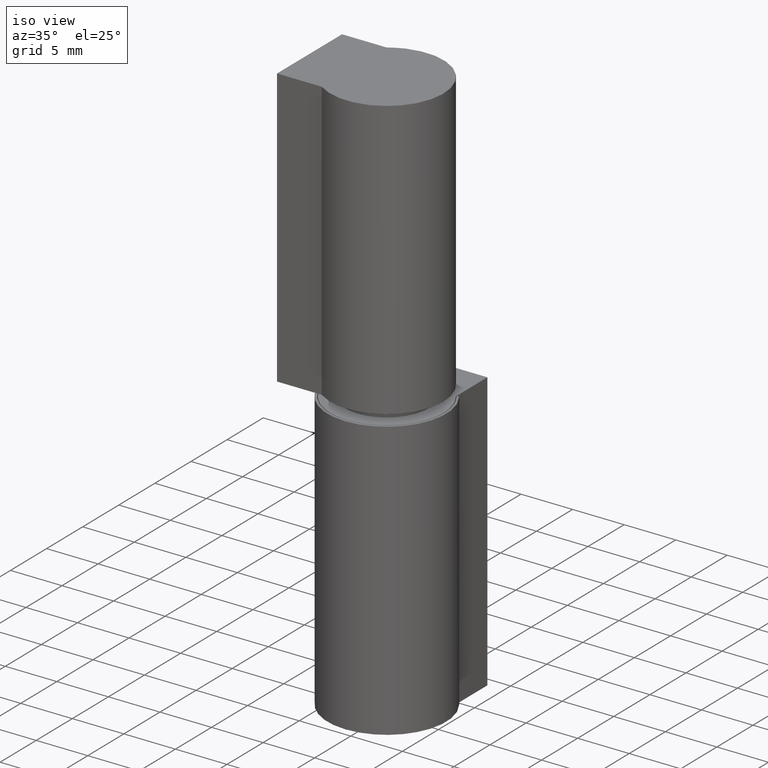
[diagram: clean part render]
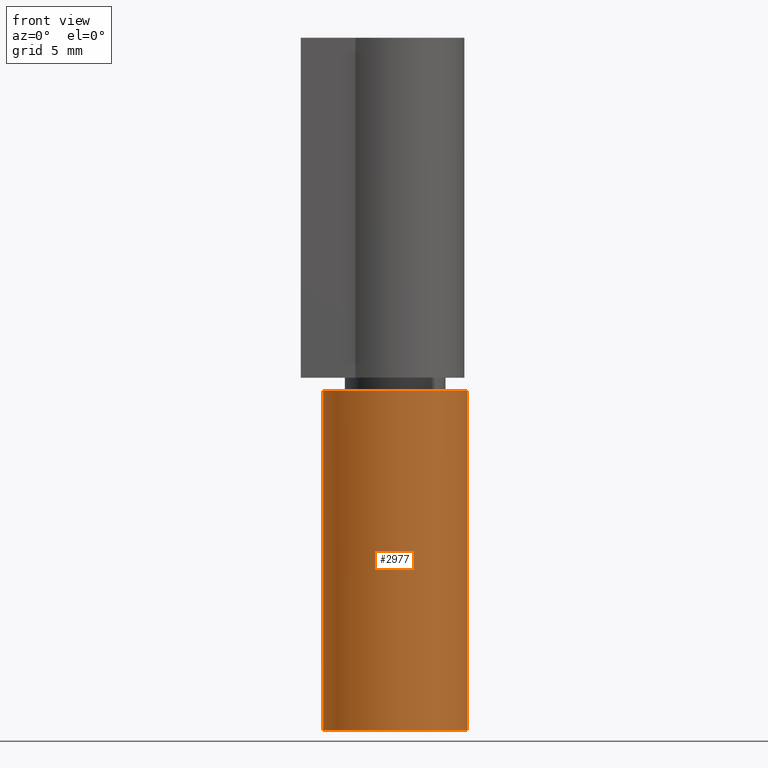
[diagram: tour spotlight — one face highlighted and labeled with its STEP entity id]
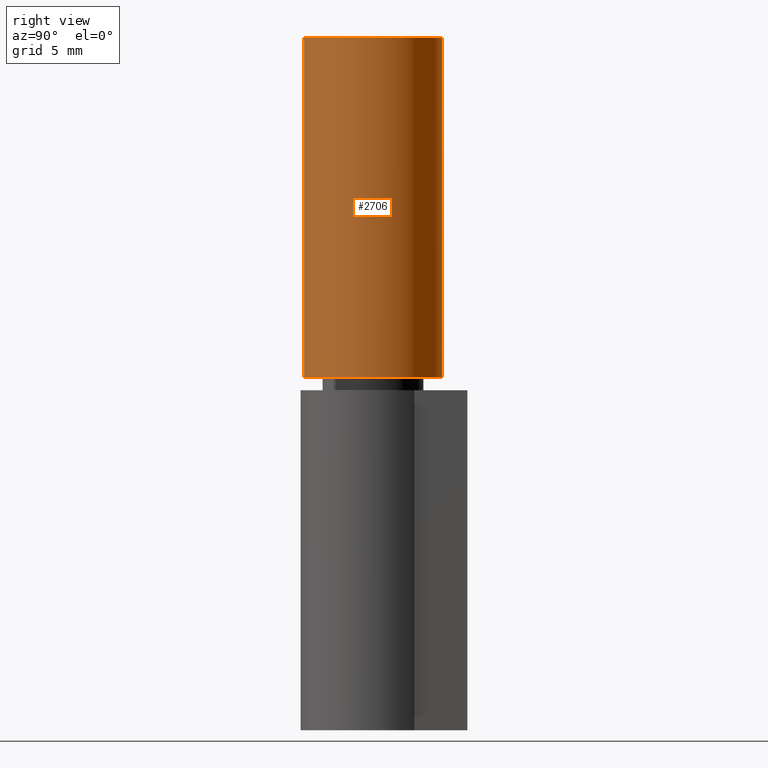
[diagram: tour spotlight — one face highlighted and labeled with its STEP entity id]
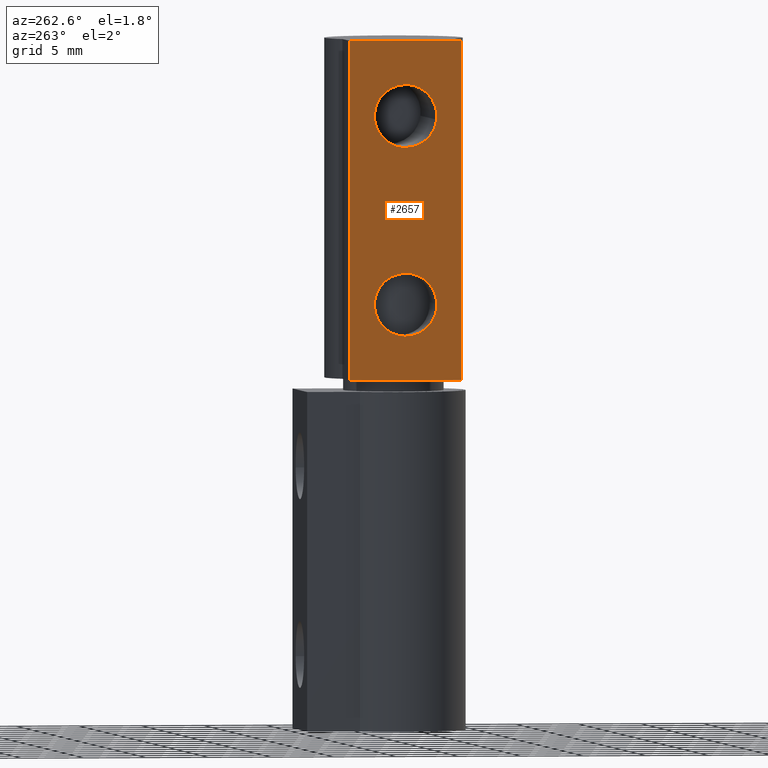
[diagram: tour spotlight — one face highlighted and labeled with its STEP entity id]
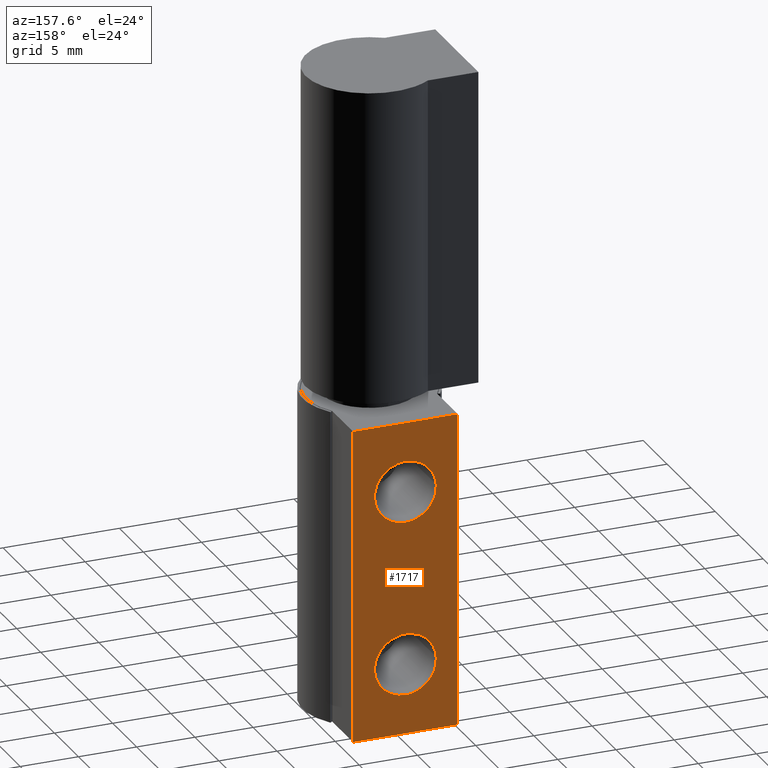
[diagram: tour spotlight — one face highlighted and labeled with its STEP entity id]
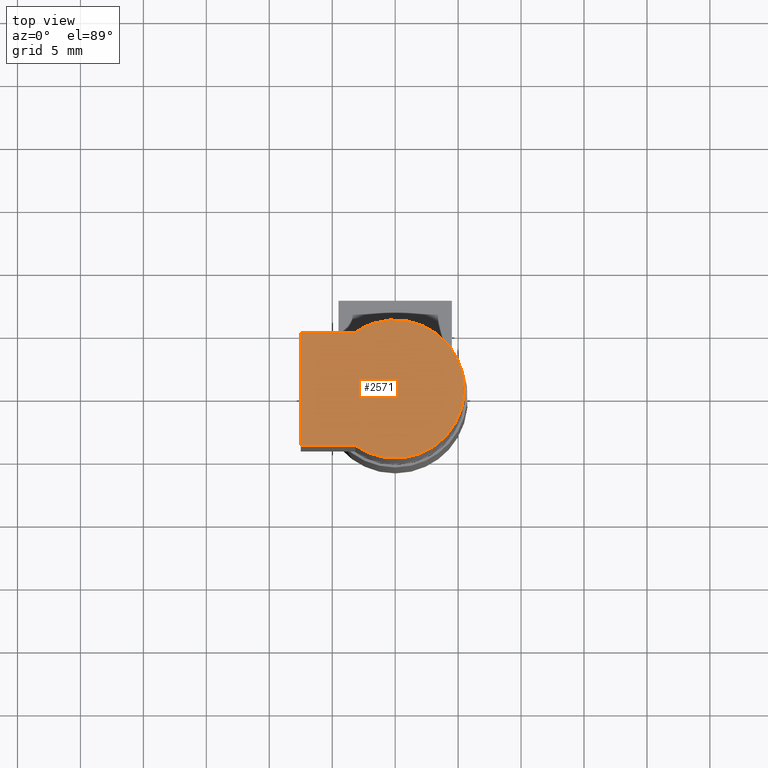
[diagram: tour spotlight — one face highlighted and labeled with its STEP entity id]
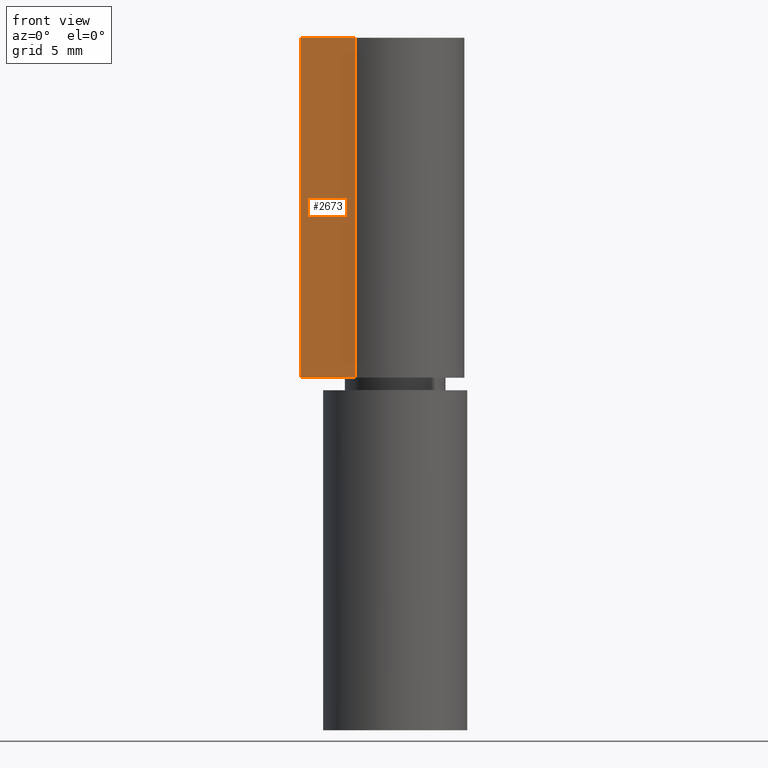
[diagram: tour spotlight — one face highlighted and labeled with its STEP entity id]
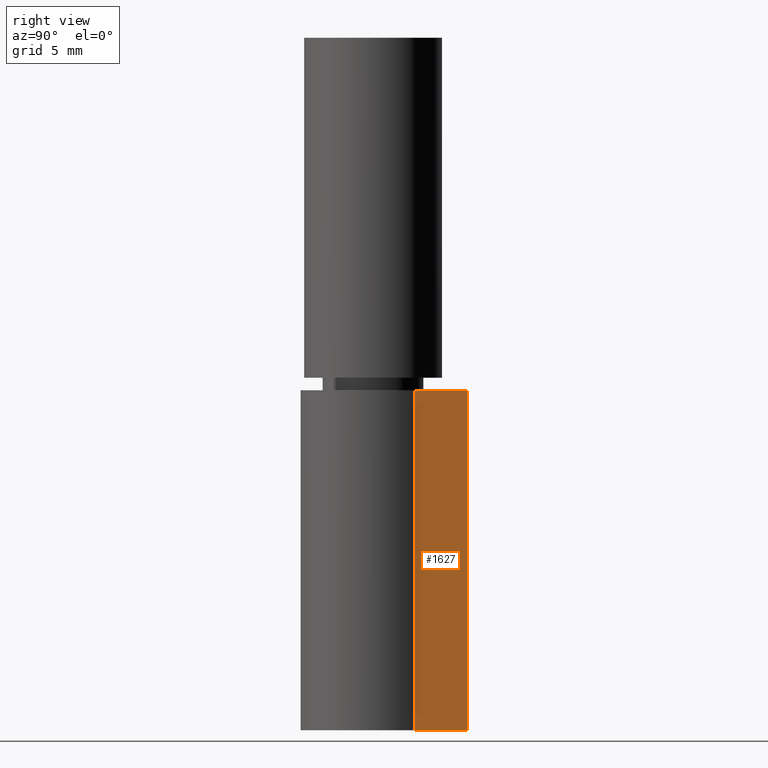
[diagram: tour spotlight — one face highlighted and labeled with its STEP entity id]
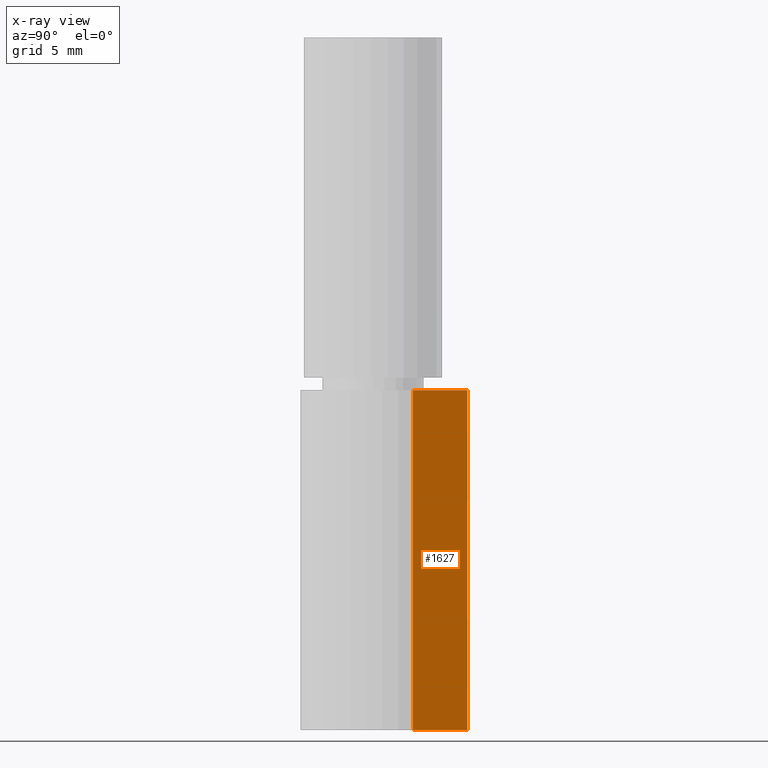
[diagram: x-ray of the same camera — body ghosted, this tour face saturated]
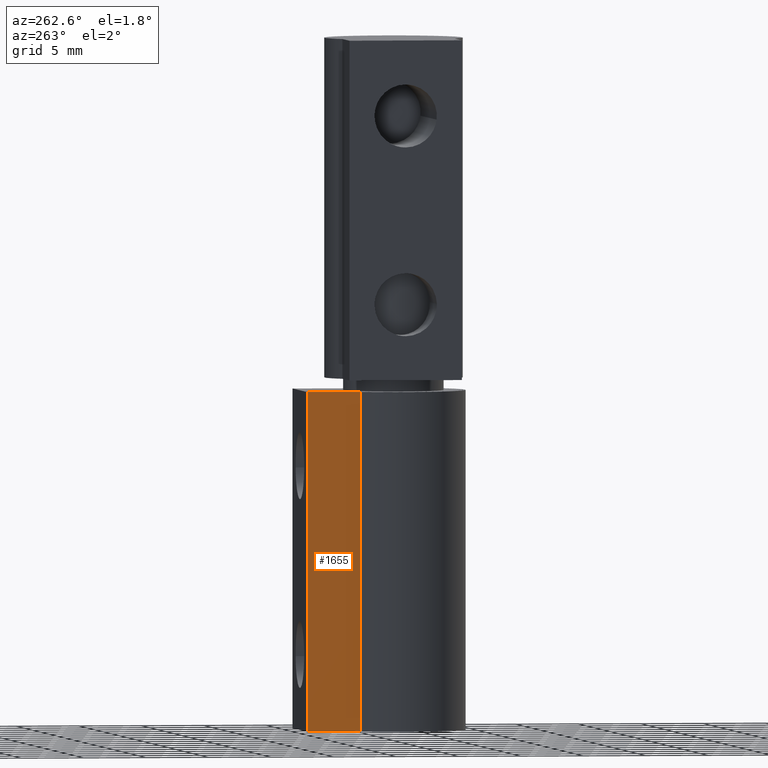
[diagram: tour spotlight — one face highlighted and labeled with its STEP entity id]
A machine part: a face-by-face anatomy tour. The part has 43 B-rep faces; the first image is the clean iso view, then the 8 largest visible faces are spotlighted one at a time (largest first), each with its STEP entity span.

Face 1 — front view, entity #2977. In plain terms, the highlighted face is a freeform B-spline surface patch.
Definition (entity closure, byte-faithful):
#2765=CARTESIAN_POINT('',(4.713988816022540,3.292591301688985,0.0));
#2766=VERTEX_POINT('',#2765);
#2767=CARTESIAN_POINT('',(-4.713988566025810,3.292591301691335,0.0));
#2768=VERTEX_POINT('',#2767);
#2769=CARTESIAN_POINT('',(4.713988816022538,3.292591301688987,0.0));
#2770=CARTESIAN_POINT('',(7.641833197507841,-0.899215001079064,0.0));
#2771=CARTESIAN_POINT('',(3.820916661251732,-4.296877377638221,0.0));
#2772=CARTESIAN_POINT('',(0.000000124995620,-7.694539754197380,0.0));
#2773=CARTESIAN_POINT('',(-3.820916411258794,-4.296877377636314,0.0));
#2774=CARTESIAN_POINT('',(-7.641832947513207,-0.899215001075251,0.0));
#2775=CARTESIAN_POINT('',(-4.713988566025815,3.292591301691338,0.0));
#2783=(BOUNDED_CURVE()B_SPLINE_CURVE(2,(#2769,#2770,#2771,#2772,#2773,#2774,#2775),.UNSPECIFIED.,.F.,.U.)B_SPLINE_CURVE_WITH_KNOTS((3,2,2,3),(0.0,0.333333333333333,0.666666666666667,1.0),.UNSPECIFIED.)CURVE()GEOMETRIC_REPRESENTATION_ITEM()RATIONAL_B_SPLINE_CURVE((1.0,0.747283822008449,1.0,0.747283822008449,1.0,0.747283822008449,1.0))REPRESENTATION_ITEM(''));
#2784=EDGE_CURVE('',#2766,#2768,#2783,.T.);
#2825=CARTESIAN_POINT('',(4.713988816022540,3.292591301688985,27.000001282428752));
#2826=VERTEX_POINT('',#2825);
#2827=CARTESIAN_POINT('',(-4.713988566025810,3.292591301691335,27.000001282428752));
#2828=VERTEX_POINT('',#2827);
#2829=CARTESIAN_POINT('',(4.713988816022538,3.292591301688987,27.000001282428752));
#2830=CARTESIAN_POINT('',(7.641833197507841,-0.899215001079064,27.000001282428748));
#2831=CARTESIAN_POINT('',(3.820916661251732,-4.296877377638221,27.000001282428752));
#2832=CARTESIAN_POINT('',(0.000000124995620,-7.694539754197380,27.000001282428748));
#2833=CARTESIAN_POINT('',(-3.820916411258794,-4.296877377636314,27.000001282428752));
#2834=CARTESIAN_POINT('',(-7.641832947513207,-0.899215001075251,27.000001282428748));
#2835=CARTESIAN_POINT('',(-4.713988566025815,3.292591301691338,27.000001282428752));
#2843=(BOUNDED_CURVE()B_SPLINE_CURVE(2,(#2829,#2830,#2831,#2832,#2833,#2834,#2835),.UNSPECIFIED.,.F.,.U.)B_SPLINE_CURVE_WITH_KNOTS((3,2,2,3),(0.0,0.333333333333333,0.666666666666667,1.0),.UNSPECIFIED.)CURVE()GEOMETRIC_REPRESENTATION_ITEM()RATIONAL_B_SPLINE_CURVE((1.0,0.747283822008449,1.0,0.747283822008449,1.0,0.747283822008449,1.0))REPRESENTATION_ITEM(''));
#2844=EDGE_CURVE('',#2826,#2828,#2843,.T.);
#2892=CARTESIAN_POINT('',(4.713988816022540,3.292591301688985,27.000001282428752));
#2893=CARTESIAN_POINT('',(4.713988816022540,3.292591301688985,0.0));
#2894=QUASI_UNIFORM_CURVE('',1,(#2892,#2893),.UNSPECIFIED.,.F.,.U.);
#2895=EDGE_CURVE('',#2826,#2766,#2894,.T.);
#2939=CARTESIAN_POINT('',(-4.713988566025810,3.292591301691335,27.000001282428752));
#2940=CARTESIAN_POINT('',(-4.713988566025810,3.292591301691335,0.0));
#2941=QUASI_UNIFORM_CURVE('',1,(#2939,#2940),.UNSPECIFIED.,.F.,.U.);
#2942=EDGE_CURVE('',#2828,#2768,#2941,.T.);
#2949=CARTESIAN_POINT('',(-4.618194631839764,3.425657470468008,27.675001314489471));
#2950=CARTESIAN_POINT('',(-4.618194631839764,3.425657470468008,-0.691875032862239));
#2951=CARTESIAN_POINT('',(-7.775594826522512,-0.830918106178567,27.675001314489471));
#2952=CARTESIAN_POINT('',(-7.775594826522512,-0.830918106178567,-0.691875032862239));
#2953=CARTESIAN_POINT('',(-3.790012169694968,-4.324160513267183,27.675001314489471));
#2954=CARTESIAN_POINT('',(-3.790012169694968,-4.324160513267183,-0.691875032862239));
#2955=CARTESIAN_POINT('',(0.195570487132575,-7.817402920355799,27.675001314489471));
#2956=CARTESIAN_POINT('',(0.195570487132575,-7.817402920355799,-0.691875032862239));
#2957=CARTESIAN_POINT('',(4.001494127292705,-4.129238488777803,27.675001314489471));
#2958=CARTESIAN_POINT('',(4.001494127292705,-4.129238488777803,-0.691875032862239));
#2959=CARTESIAN_POINT('',(7.807417767452832,-0.441074057199807,27.675001314489471));
#2960=CARTESIAN_POINT('',(7.807417767452832,-0.441074057199807,-0.691875032862239));
#2961=CARTESIAN_POINT('',(4.441124917126288,3.652296690109451,27.675001314489471));
#2962=CARTESIAN_POINT('',(4.441124917126288,3.652296690109451,-0.691875032862239));
#2970=(BOUNDED_SURFACE()B_SPLINE_SURFACE(1,2,((#2949,#2951,#2953,#2955,#2957,#2959,#2961),(#2950,#2952,#2954,#2956,#2958,#2960,#2962)),.UNSPECIFIED.,.F.,.F.,.U.)B_SPLINE_SURFACE_WITH_KNOTS((2,2),(3,2,2,3),(0.0,28.366876347351710),(0.0,8.982773771662284,17.965547543324568,26.948321314986849),.UNSPECIFIED.)GEOMETRIC_REPRESENTATION_ITEM()RATIONAL_B_SPLINE_SURFACE(((1.0,0.735309008059829,1.0,0.735309008059829,1.0,0.735309008059829,1.0),(1.0,0.735309008059829,1.0,0.735309008059829,1.0,0.735309008059829,1.0)))REPRESENTATION_ITEM('')SURFACE());
#2971=ORIENTED_EDGE('',*,*,#2784,.F.);
#2972=ORIENTED_EDGE('',*,*,#2895,.F.);
#2973=ORIENTED_EDGE('',*,*,#2844,.T.);
#2974=ORIENTED_EDGE('',*,*,#2942,.T.);
#2975=EDGE_LOOP('',(#2971,#2972,#2973,#2974));
#2976=FACE_OUTER_BOUND('',#2975,.T.);
#2977=ADVANCED_FACE('',(#2976),#2970,.T.);

Face 2 — right view, entity #2706. In plain terms, the highlighted face is a freeform B-spline surface patch.
Definition (entity closure, byte-faithful):
#2531=CARTESIAN_POINT('',(-3.162327777243335,4.500000338738460,55.000002612355502));
#2532=VERTEX_POINT('',#2531);
#2545=CARTESIAN_POINT('',(-3.162327777243385,-4.500000088738620,55.000002612355502));
#2546=VERTEX_POINT('',#2545);
#2552=CARTESIAN_POINT('',(-3.162327777243387,-4.500000088738619,55.000002612355502));
#2553=CARTESIAN_POINT('',(0.846888674569442,-7.317418562969919,55.000002612355516));
#2554=CARTESIAN_POINT('',(4.106568007366482,-3.658709218985032,55.000002612355502));
#2555=CARTESIAN_POINT('',(7.366247340163524,0.000000124999856,55.000002612355516));
#2556=CARTESIAN_POINT('',(4.106568007366527,3.658709468984783,55.000002612355502));
#2557=CARTESIAN_POINT('',(0.846888674569530,7.317418812969710,55.000002612355516));
#2558=CARTESIAN_POINT('',(-3.162327777243334,4.500000338738457,55.000002612355502));
#2566=(BOUNDED_CURVE()B_SPLINE_CURVE(2,(#2552,#2553,#2554,#2555,#2556,#2557,#2558),.UNSPECIFIED.,.F.,.U.)B_SPLINE_CURVE_WITH_KNOTS((3,2,2,3),(0.0,0.333333333333333,0.666666666666667,1.0),.UNSPECIFIED.)CURVE()GEOMETRIC_REPRESENTATION_ITEM()RATIONAL_B_SPLINE_CURVE((1.0,0.746649512775891,1.0,0.746649512775891,1.0,0.746649512775891,1.0))REPRESENTATION_ITEM(''));
#2567=EDGE_CURVE('',#2546,#2532,#2566,.T.);
#2579=CARTESIAN_POINT('',(-3.162327777243335,4.500000338738460,28.000001329926199));
#2580=VERTEX_POINT('',#2579);
#2586=CARTESIAN_POINT('',(-3.162327777243385,-4.500000088738620,28.000001329926199));
#2587=VERTEX_POINT('',#2586);
#2588=CARTESIAN_POINT('',(-3.162327777243387,-4.500000088738619,28.000001329926199));
#2589=CARTESIAN_POINT('',(0.846888674569442,-7.317418562969919,28.000001329926199));
#2590=CARTESIAN_POINT('',(4.106568007366482,-3.658709218985032,28.000001329926199));
#2591=CARTESIAN_POINT('',(7.366247340163524,0.000000124999856,28.000001329926199));
#2592=CARTESIAN_POINT('',(4.106568007366527,3.658709468984783,28.000001329926199));
#2593=CARTESIAN_POINT('',(0.846888674569530,7.317418812969710,28.000001329926199));
#2594=CARTESIAN_POINT('',(-3.162327777243334,4.500000338738457,28.000001329926199));
#2602=(BOUNDED_CURVE()B_SPLINE_CURVE(2,(#2588,#2589,#2590,#2591,#2592,#2593,#2594),.UNSPECIFIED.,.F.,.U.)B_SPLINE_CURVE_WITH_KNOTS((3,2,2,3),(0.0,0.333333333333333,0.666666666666667,1.0),.UNSPECIFIED.)CURVE()GEOMETRIC_REPRESENTATION_ITEM()RATIONAL_B_SPLINE_CURVE((1.0,0.746649512775891,1.0,0.746649512775891,1.0,0.746649512775891,1.0))REPRESENTATION_ITEM(''));
#2603=EDGE_CURVE('',#2587,#2580,#2602,.T.);
#2666=CARTESIAN_POINT('',(-3.162327777243385,-4.500000088738620,28.000001329926199));
#2667=CARTESIAN_POINT('',(-3.162327777243385,-4.500000088738620,55.000002612355502));
#2668=QUASI_UNIFORM_CURVE('',1,(#2666,#2667),.UNSPECIFIED.,.F.,.U.);
#2669=EDGE_CURVE('',#2587,#2546,#2668,.T.);
#2674=CARTESIAN_POINT('',(-3.355605211666956,4.357779327565299,27.325001297865459));
#2675=CARTESIAN_POINT('',(-3.355605211666956,4.357779327565299,55.691877645217758));
#2676=CARTESIAN_POINT('',(0.660946167981092,7.450613353439892,27.325001297865459));
#2677=CARTESIAN_POINT('',(0.660946167981092,7.450613353439892,55.691877645217765));
#2678=CARTESIAN_POINT('',(4.070308399783673,3.699006168603185,27.325001297865459));
#2679=CARTESIAN_POINT('',(4.070308399783673,3.699006168603185,55.691877645217758));
#2680=CARTESIAN_POINT('',(7.479670631586254,-0.052601016233523,27.325001297865459));
#2681=CARTESIAN_POINT('',(7.479670631586254,-0.052601016233523,55.691877645217765));
#2682=CARTESIAN_POINT('',(4.017881637222425,-3.755886618973576,27.325001297865459));
#2683=CARTESIAN_POINT('',(4.017881637222425,-3.755886618973576,55.691877645217758));
#2684=CARTESIAN_POINT('',(0.556092642858596,-7.459172221713629,27.325001297865459));
#2685=CARTESIAN_POINT('',(0.556092642858596,-7.459172221713629,55.691877645217765));
#2686=CARTESIAN_POINT('',(-3.416562718066424,-4.310153853987904,27.325001297865459));
#2687=CARTESIAN_POINT('',(-3.416562718066424,-4.310153853987904,55.691877645217758));
#2695=(BOUNDED_SURFACE()B_SPLINE_SURFACE(1,2,((#2674,#2676,#2678,#2680,#2682,#2684,#2686),(#2675,#2677,#2679,#2681,#2683,#2685,#2687)),.UNSPECIFIED.,.F.,.F.,.U.)B_SPLINE_SURFACE_WITH_KNOTS((2,2),(3,2,2,3),(0.0,28.366876347352299),(0.0,8.592218558286536,17.184437116573068,25.776655674859612),.UNSPECIFIED.)GEOMETRIC_REPRESENTATION_ITEM()RATIONAL_B_SPLINE_SURFACE(((1.0,0.735309008059829,1.0,0.735309008059829,1.0,0.735309008059829,1.0),(1.0,0.735309008059829,1.0,0.735309008059829,1.0,0.735309008059829,1.0)))REPRESENTATION_ITEM('')SURFACE());
#2696=ORIENTED_EDGE('',*,*,#2567,.F.);
#2697=ORIENTED_EDGE('',*,*,#2669,.F.);
#2698=ORIENTED_EDGE('',*,*,#2603,.T.);
#2699=CARTESIAN_POINT('',(-3.162327777243335,4.500000338738460,28.000001329926199));
#2700=CARTESIAN_POINT('',(-3.162327777243335,4.500000338738460,55.000002612355502));
#2701=QUASI_UNIFORM_CURVE('',1,(#2699,#2700),.UNSPECIFIED.,.F.,.U.);
#2702=EDGE_CURVE('',#2580,#2532,#2701,.T.);
#2703=ORIENTED_EDGE('',*,*,#2702,.T.);
#2704=EDGE_LOOP('',(#2696,#2697,#2698,#2703));
#2705=FACE_OUTER_BOUND('',#2704,.T.);
#2706=ADVANCED_FACE('',(#2705),#2695,.T.);

Face 3 — auxiliary view, entity #2657. In plain terms, the highlighted face is a freeform B-spline surface patch.
Definition (entity closure, byte-faithful):
#2185=CARTESIAN_POINT('',(-7.500000231230869,-2.482561998375129,48.704916740648592));
#2186=VERTEX_POINT('',#2185);
#2192=CARTESIAN_POINT('',(-7.500000231230869,-0.000038182474583,51.500002327362999));
#2193=VERTEX_POINT('',#2192);
#2194=CARTESIAN_POINT('',(-7.500000231230869,-2.482561998375129,48.704916740648578));
#2195=CARTESIAN_POINT('',(-7.500000231230869,-2.500038182474584,48.851942028159939));
#2196=CARTESIAN_POINT('',(-7.500000231230869,-2.500038182474583,49.000002327362999));
#2197=CARTESIAN_POINT('',(-7.500000231230868,-2.500038182474583,51.500002327363006));
#2198=CARTESIAN_POINT('',(-7.500000231230869,-0.000038182474583,51.500002327362999));
#2206=(BOUNDED_CURVE()B_SPLINE_CURVE(2,(#2194,#2195,#2196,#2197,#2198),.UNSPECIFIED.,.F.,.U.)B_SPLINE_CURVE_WITH_KNOTS((3,2,3),(0.229562473505770,0.250000000000000,0.500000000000000),.UNSPECIFIED.)CURVE()GEOMETRIC_REPRESENTATION_ITEM()RATIONAL_B_SPLINE_CURVE((0.956026754168533,0.976055948322080,1.0,0.707106781186548,1.0))REPRESENTATION_ITEM(''));
#2207=EDGE_CURVE('',#2186,#2193,#2206,.T.);
#2209=CARTESIAN_POINT('',(-7.500000231230869,2.495298813570860,49.152623676350963));
#2210=VERTEX_POINT('',#2209);
#2211=CARTESIAN_POINT('',(-7.500000231230869,-0.000038182474583,51.500002327362999));
#2212=CARTESIAN_POINT('',(-7.500000231230869,2.351726984504866,51.500002327362992));
#2213=CARTESIAN_POINT('',(-7.500000231230869,2.495298813570861,49.152623676350963));
#2221=(BOUNDED_CURVE()B_SPLINE_CURVE(2,(#2211,#2212,#2213),.UNSPECIFIED.,.F.,.U.)B_SPLINE_CURVE_WITH_KNOTS((3,3),(0.500000000000000,0.739332962221113),.UNSPECIFIED.)CURVE()GEOMETRIC_REPRESENTATION_ITEM()RATIONAL_B_SPLINE_CURVE((1.0,0.719603993307600,0.976072041628504))REPRESENTATION_ITEM(''));
#2222=EDGE_CURVE('',#2193,#2210,#2221,.T.);
#2296=CARTESIAN_POINT('',(-7.500000231230869,-0.000038182474583,46.500002327362999));
#2297=VERTEX_POINT('',#2296);
#2298=CARTESIAN_POINT('',(-7.500000231230869,2.495298813570860,49.152623676350956));
#2299=CARTESIAN_POINT('',(-7.500000231230869,2.499961817525417,49.076384235760706));
#2300=CARTESIAN_POINT('',(-7.500000231230869,2.499961817525417,49.000002327362999));
#2301=CARTESIAN_POINT('',(-7.500000231230868,2.499961817525417,46.500002327362992));
#2302=CARTESIAN_POINT('',(-7.500000231230869,-0.000038182474583,46.500002327362999));
#2310=(BOUNDED_CURVE()B_SPLINE_CURVE(2,(#2298,#2299,#2300,#2301,#2302),.UNSPECIFIED.,.F.,.U.)B_SPLINE_CURVE_WITH_KNOTS((3,2,3),(0.739332962221112,0.750000000000000,1.0),.UNSPECIFIED.)CURVE()GEOMETRIC_REPRESENTATION_ITEM()RATIONAL_B_SPLINE_CURVE((0.976072041628502,0.987502787878947,1.0,0.707106781186548,1.0))REPRESENTATION_ITEM(''));
#2311=EDGE_CURVE('',#2210,#2297,#2310,.T.);
#2313=CARTESIAN_POINT('',(-7.500000231230869,-0.000038182474583,46.500002327362999));
#2314=CARTESIAN_POINT('',(-7.500000231230870,-2.220474497222365,46.500002327362999));
#2315=CARTESIAN_POINT('',(-7.500000231230869,-2.482561998375129,48.704916740648578));
#2323=(BOUNDED_CURVE()B_SPLINE_CURVE(2,(#2313,#2314,#2315),.UNSPECIFIED.,.F.,.U.)B_SPLINE_CURVE_WITH_KNOTS((3,3),(0.0,0.229562473505771),.UNSPECIFIED.)CURVE()GEOMETRIC_REPRESENTATION_ITEM()RATIONAL_B_SPLINE_CURVE((1.0,0.731050832864468,0.956026754168533))REPRESENTATION_ITEM(''));
#2324=EDGE_CURVE('',#2297,#2186,#2323,.T.);
#2349=CARTESIAN_POINT('',(-7.500000231230868,-2.499181494908756,34.065444698312909));
#2350=VERTEX_POINT('',#2349);
#2356=CARTESIAN_POINT('',(-7.500000231230869,-0.000038182474583,36.500002327362999));
#2357=VERTEX_POINT('',#2356);
#2358=CARTESIAN_POINT('',(-7.500000231230868,-2.499181494908756,34.065444698312909));
#2359=CARTESIAN_POINT('',(-7.500000231230870,-2.435430359427397,36.500002327363013));
#2360=CARTESIAN_POINT('',(-7.500000231230869,-0.000038182474583,36.500002327362999));
#2368=(BOUNDED_CURVE()B_SPLINE_CURVE(2,(#2358,#2359,#2360),.UNSPECIFIED.,.F.,.U.)B_SPLINE_CURVE_WITH_KNOTS((3,3),(0.254603306684232,0.500000000000000),.UNSPECIFIED.)CURVE()GEOMETRIC_REPRESENTATION_ITEM()RATIONAL_B_SPLINE_CURVE((0.989412390591350,0.712499890434268,1.0))REPRESENTATION_ITEM(''));
#2369=EDGE_CURVE('',#2350,#2357,#2368,.T.);
#2371=CARTESIAN_POINT('',(-7.500000231230868,2.499105129959590,33.934559956413082));
#2372=VERTEX_POINT('',#2371);
#2373=CARTESIAN_POINT('',(-7.500000231230869,-0.000038182474583,36.500002327362999));
#2374=CARTESIAN_POINT('',(-7.500000231230868,2.499961817525417,36.500002327363006));
#2375=CARTESIAN_POINT('',(-7.500000231230869,2.499961817525417,34.000002327362999));
#2376=CARTESIAN_POINT('',(-7.500000231230869,2.499961817525417,33.967275534470595));
#2377=CARTESIAN_POINT('',(-7.500000231230868,2.499105129959590,33.934559956413082));
#2385=(BOUNDED_CURVE()B_SPLINE_CURVE(2,(#2373,#2374,#2375,#2376,#2377),.UNSPECIFIED.,.F.,.U.)B_SPLINE_CURVE_WITH_KNOTS((3,2,3),(0.500000000000000,0.750000000000000,0.754603306684231),.UNSPECIFIED.)CURVE()GEOMETRIC_REPRESENTATION_ITEM()RATIONAL_B_SPLINE_CURVE((1.0,0.707106781186548,1.0,0.994606890752280,0.989412390591351))REPRESENTATION_ITEM(''));
#2386=EDGE_CURVE('',#2357,#2372,#2385,.T.);
#2418=CARTESIAN_POINT('',(-7.500000231230869,-0.000038182474583,31.500002327362999));
#2419=VERTEX_POINT('',#2418);
#2420=CARTESIAN_POINT('',(-7.500000231230868,2.499105129959590,33.934559956413089));
#2421=CARTESIAN_POINT('',(-7.500000231230868,2.435353994478231,31.500002327362996));
#2422=CARTESIAN_POINT('',(-7.500000231230869,-0.000038182474583,31.500002327362999));
#2430=(BOUNDED_CURVE()B_SPLINE_CURVE(2,(#2420,#2421,#2422),.UNSPECIFIED.,.F.,.U.)B_SPLINE_CURVE_WITH_KNOTS((3,3),(0.754603306684232,1.0),.UNSPECIFIED.)CURVE()GEOMETRIC_REPRESENTATION_ITEM()RATIONAL_B_SPLINE_CURVE((0.989412390591350,0.712499890434268,1.0))REPRESENTATION_ITEM(''));
#2431=EDGE_CURVE('',#2372,#2419,#2430,.T.);
#2433=CARTESIAN_POINT('',(-7.500000231230869,-0.000038182474583,31.500002327362999));
#2434=CARTESIAN_POINT('',(-7.500000231230868,-2.500038182474583,31.500002327362989));
#2435=CARTESIAN_POINT('',(-7.500000231230869,-2.500038182474583,34.000002327362999));
#2436=CARTESIAN_POINT('',(-7.500000231230869,-2.500038182474583,34.032729120255418));
#2437=CARTESIAN_POINT('',(-7.500000231230868,-2.499181494908756,34.065444698312909));
#2445=(BOUNDED_CURVE()B_SPLINE_CURVE(2,(#2433,#2434,#2435,#2436,#2437),.UNSPECIFIED.,.F.,.U.)B_SPLINE_CURVE_WITH_KNOTS((3,2,3),(0.0,0.250000000000000,0.254603306684232),.UNSPECIFIED.)CURVE()GEOMETRIC_REPRESENTATION_ITEM()RATIONAL_B_SPLINE_CURVE((1.0,0.707106781186548,1.0,0.994606890752280,0.989412390591350))REPRESENTATION_ITEM(''));
#2446=EDGE_CURVE('',#2419,#2350,#2445,.T.);
#2529=CARTESIAN_POINT('',(-7.500000231230910,4.500000088738490,55.000002612355502));
#2530=VERTEX_POINT('',#2529);
#2538=CARTESIAN_POINT('',(-7.499999981230870,-4.500000088738601,55.000002612355502));
#2539=VERTEX_POINT('',#2538);
#2540=CARTESIAN_POINT('',(-7.499999981230870,-4.500000088738601,55.000002612355502));
#2541=CARTESIAN_POINT('',(-7.500000231230910,4.500000088738490,55.000002612355502));
#2542=QUASI_UNIFORM_CURVE('',1,(#2540,#2541),.UNSPECIFIED.,.F.,.U.);
#2543=EDGE_CURVE('',#2539,#2530,#2542,.T.);
#2577=CARTESIAN_POINT('',(-7.500000231230910,4.500000088738490,28.000001329926199));
#2578=VERTEX_POINT('',#2577);
#2605=CARTESIAN_POINT('',(-7.499999981230870,-4.500000088738601,28.000001329926199));
#2606=VERTEX_POINT('',#2605);
#2612=CARTESIAN_POINT('',(-7.499999981230870,-4.500000088738601,28.000001329926199));
#2613=CARTESIAN_POINT('',(-7.500000231230910,4.500000088738490,28.000001329926199));
#2614=QUASI_UNIFORM_CURVE('',1,(#2612,#2613),.UNSPECIFIED.,.F.,.U.);
#2615=EDGE_CURVE('',#2606,#2578,#2614,.T.);
#2626=CARTESIAN_POINT('',(-7.500000231230910,-4.949549995674272,56.348653794902098));
#2627=CARTESIAN_POINT('',(-7.500000231230910,-4.949549995674272,26.651352561367830));
#2628=CARTESIAN_POINT('',(-7.500000231230910,4.949550317539251,56.348653794902098));
#2629=CARTESIAN_POINT('',(-7.500000231230910,4.949550317539251,26.651352561367830));
#2630=B_SPLINE_SURFACE_WITH_KNOTS('',1,1,((#2626,#2628),(#2627,#2629)),.UNSPECIFIED.,.F.,.F.,.U.,(2,2),(2,2),(0.0,29.697301233534269),(0.0,9.899100313213523),.UNSPECIFIED.);
#2631=ORIENTED_EDGE('',*,*,#2543,.T.);
#2632=CARTESIAN_POINT('',(-7.500000231230910,4.500000088738490,28.000001329926199));
#2633=CARTESIAN_POINT('',(-7.500000231230910,4.500000088738490,55.000002612355502));
#2634=QUASI_UNIFORM_CURVE('',1,(#2632,#2633),.UNSPECIFIED.,.F.,.U.);
#2635=EDGE_CURVE('',#2578,#2530,#2634,.T.);
#2636=ORIENTED_EDGE('',*,*,#2635,.F.);
#2637=ORIENTED_EDGE('',*,*,#2615,.F.);
#2638=CARTESIAN_POINT('',(-7.499999981230870,-4.500000088738601,28.000001329926199));
#2639=CARTESIAN_POINT('',(-7.499999981230870,-4.500000088738601,55.000002612355502));
#2640=QUASI_UNIFORM_CURVE('',1,(#2638,#2639),.UNSPECIFIED.,.F.,.U.);
#2641=EDGE_CURVE('',#2606,#2539,#2640,.T.);
#2642=ORIENTED_EDGE('',*,*,#2641,.T.);
#2643=EDGE_LOOP('',(#2631,#2636,#2637,#2642));
#2644=FACE_OUTER_BOUND('',#2643,.T.);
#2645=ORIENTED_EDGE('',*,*,#2386,.F.);
#2646=ORIENTED_EDGE('',*,*,#2369,.F.);
#2647=ORIENTED_EDGE('',*,*,#2446,.F.);
#2648=ORIENTED_EDGE('',*,*,#2431,.F.);
#2649=EDGE_LOOP('',(#2645,#2646,#2647,#2648));
#2650=FACE_BOUND('',#2649,.T.);
#2651=ORIENTED_EDGE('',*,*,#2222,.F.);
#2652=ORIENTED_EDGE('',*,*,#2207,.F.);
#2653=ORIENTED_EDGE('',*,*,#2324,.F.);
#2654=ORIENTED_EDGE('',*,*,#2311,.F.);
#2655=EDGE_LOOP('',(#2651,#2652,#2653,#2654));
#2656=FACE_BOUND('',#2655,.T.);
#2657=ADVANCED_FACE('',(#2644,#2650,#2656),#2630,.F.);

Face 4 — auxiliary view, entity #1717. In plain terms, the highlighted face is a freeform B-spline surface patch.
Definition (entity closure, byte-faithful):
#1094=CARTESIAN_POINT('',(-2.641830934385853,7.500000356230891,6.207917601206521));
#1095=VERTEX_POINT('',#1094);
#1101=CARTESIAN_POINT('',(0.0,7.500000356230890,8.650000997439610));
#1102=VERTEX_POINT('',#1101);
#1103=CARTESIAN_POINT('',(0.0,7.500000356230890,8.650000997439610));
#1104=CARTESIAN_POINT('',(-2.449634802730322,7.500000356230891,8.650000997439610));
#1105=CARTESIAN_POINT('',(-2.641830934385853,7.500000356230891,6.207917601206521));
#1113=(BOUNDED_CURVE()B_SPLINE_CURVE(2,(#1103,#1104,#1105),.UNSPECIFIED.,.F.,.U.)B_SPLINE_CURVE_WITH_KNOTS((3,3),(0.0,0.236331300621331),.UNSPECIFIED.)CURVE()GEOMETRIC_REPRESENTATION_ITEM()RATIONAL_B_SPLINE_CURVE((1.0,0.723120658618595,0.969723356147949))REPRESENTATION_ITEM(''));
#1114=EDGE_CURVE('',#1102,#1095,#1113,.T.);
#1116=CARTESIAN_POINT('',(2.641830934385853,7.500000356230890,5.792084393672698));
#1117=VERTEX_POINT('',#1116);
#1118=CARTESIAN_POINT('',(2.641830934385853,7.500000356230890,5.792084393672698));
#1119=CARTESIAN_POINT('',(2.650000000000000,7.500000356230889,5.895882213780754));
#1120=CARTESIAN_POINT('',(2.650000000000000,7.500000356230890,6.000000997439609));
#1121=CARTESIAN_POINT('',(2.650000000000000,7.500000356230891,8.650000997439610));
#1122=CARTESIAN_POINT('',(0.0,7.500000356230890,8.650000997439610));
#1130=(BOUNDED_CURVE()B_SPLINE_CURVE(2,(#1118,#1119,#1120,#1121,#1122),.UNSPECIFIED.,.F.,.U.)B_SPLINE_CURVE_WITH_KNOTS((3,2,3),(0.736331300621331,0.750000000000000,1.0),.UNSPECIFIED.)CURVE()GEOMETRIC_REPRESENTATION_ITEM()RATIONAL_B_SPLINE_CURVE((0.969723356147949,0.983986122567953,1.0,0.707106781186548,1.0))REPRESENTATION_ITEM(''));
#1131=EDGE_CURVE('',#1117,#1102,#1130,.T.);
#1207=CARTESIAN_POINT('',(0.0,7.500000356230890,3.350000997439609));
#1208=VERTEX_POINT('',#1207);
#1209=CARTESIAN_POINT('',(0.0,7.500000356230890,3.350000997439609));
#1210=CARTESIAN_POINT('',(2.449634802730323,7.500000356230891,3.350000997439609));
#1211=CARTESIAN_POINT('',(2.641830934385853,7.500000356230890,5.792084393672698));
#1219=(BOUNDED_CURVE()B_SPLINE_CURVE(2,(#1209,#1210,#1211),.UNSPECIFIED.,.F.,.U.)B_SPLINE_CURVE_WITH_KNOTS((3,3),(0.500000000000000,0.736331300621331),.UNSPECIFIED.)CURVE()GEOMETRIC_REPRESENTATION_ITEM()RATIONAL_B_SPLINE_CURVE((1.0,0.723120658618595,0.969723356147949))REPRESENTATION_ITEM(''));
#1220=EDGE_CURVE('',#1208,#1117,#1219,.T.);
#1222=CARTESIAN_POINT('',(-2.641830934385853,7.500000356230891,6.207917601206521));
#1223=CARTESIAN_POINT('',(-2.650000000000000,7.500000356230889,6.104119781098464));
#1224=CARTESIAN_POINT('',(-2.650000000000000,7.500000356230890,6.000000997439609));
#1225=CARTESIAN_POINT('',(-2.650000000000000,7.500000356230891,3.350000997439609));
#1226=CARTESIAN_POINT('',(0.0,7.500000356230890,3.350000997439609));
#1234=(BOUNDED_CURVE()B_SPLINE_CURVE(2,(#1222,#1223,#1224,#1225,#1226),.UNSPECIFIED.,.F.,.U.)B_SPLINE_CURVE_WITH_KNOTS((3,2,3),(0.236331300621331,0.250000000000000,0.500000000000000),.UNSPECIFIED.)CURVE()GEOMETRIC_REPRESENTATION_ITEM()RATIONAL_B_SPLINE_CURVE((0.969723356147949,0.983986122567952,1.0,0.707106781186548,1.0))REPRESENTATION_ITEM(''));
#1235=EDGE_CURVE('',#1095,#1208,#1234,.T.);
#1276=CARTESIAN_POINT('',(-2.641830934385853,7.500000356230891,21.207917601206560));
#1277=VERTEX_POINT('',#1276);
#1283=CARTESIAN_POINT('',(0.0,7.500000356230890,23.650000997439651));
#1284=VERTEX_POINT('',#1283);
#1285=CARTESIAN_POINT('',(0.0,7.500000356230890,23.650000997439651));
#1286=CARTESIAN_POINT('',(-2.449634802730322,7.500000356230891,23.650000997439648));
#1287=CARTESIAN_POINT('',(-2.641830934385853,7.500000356230891,21.207917601206564));
#1295=(BOUNDED_CURVE()B_SPLINE_CURVE(2,(#1285,#1286,#1287),.UNSPECIFIED.,.F.,.U.)B_SPLINE_CURVE_WITH_KNOTS((3,3),(0.0,0.236331300621331),.UNSPECIFIED.)CURVE()GEOMETRIC_REPRESENTATION_ITEM()RATIONAL_B_SPLINE_CURVE((1.0,0.723120658618595,0.969723356147949))REPRESENTATION_ITEM(''));
#1296=EDGE_CURVE('',#1284,#1277,#1295,.T.);
#1298=CARTESIAN_POINT('',(2.641830934385853,7.500000356230890,20.792084393672742));
#1299=VERTEX_POINT('',#1298);
#1300=CARTESIAN_POINT('',(2.641830934385853,7.500000356230891,20.792084393672738));
#1301=CARTESIAN_POINT('',(2.650000000000000,7.500000356230890,20.895882213780798));
#1302=CARTESIAN_POINT('',(2.650000000000000,7.500000356230890,21.000000997439649));
#1303=CARTESIAN_POINT('',(2.650000000000000,7.500000356230891,23.650000997439651));
#1304=CARTESIAN_POINT('',(0.0,7.500000356230890,23.650000997439651));
#1312=(BOUNDED_CURVE()B_SPLINE_CURVE(2,(#1300,#1301,#1302,#1303,#1304),.UNSPECIFIED.,.F.,.U.)B_SPLINE_CURVE_WITH_KNOTS((3,2,3),(0.736331300621331,0.750000000000000,1.0),.UNSPECIFIED.)CURVE()GEOMETRIC_REPRESENTATION_ITEM()RATIONAL_B_SPLINE_CURVE((0.969723356147949,0.983986122567952,1.0,0.707106781186548,1.0))REPRESENTATION_ITEM(''));
#1313=EDGE_CURVE('',#1299,#1284,#1312,.T.);
#1389=CARTESIAN_POINT('',(0.0,7.500000356230890,18.350000997439651));
#1390=VERTEX_POINT('',#1389);
#1391=CARTESIAN_POINT('',(0.0,7.500000356230890,18.350000997439651));
#1392=CARTESIAN_POINT('',(2.449634802730323,7.500000356230891,18.350000997439643));
#1393=CARTESIAN_POINT('',(2.641830934385853,7.500000356230890,20.792084393672742));
#1401=(BOUNDED_CURVE()B_SPLINE_CURVE(2,(#1391,#1392,#1393),.UNSPECIFIED.,.F.,.U.)B_SPLINE_CURVE_WITH_KNOTS((3,3),(0.500000000000000,0.736331300621331),.UNSPECIFIED.)CURVE()GEOMETRIC_REPRESENTATION_ITEM()RATIONAL_B_SPLINE_CURVE((1.0,0.723120658618595,0.969723356147949))REPRESENTATION_ITEM(''));
#1402=EDGE_CURVE('',#1390,#1299,#1401,.T.);
#1404=CARTESIAN_POINT('',(-2.641830934385853,7.500000356230891,21.207917601206564));
#1405=CARTESIAN_POINT('',(-2.650000000000000,7.500000356230889,21.104119781098500));
#1406=CARTESIAN_POINT('',(-2.650000000000000,7.500000356230890,21.000000997439649));
#1407=CARTESIAN_POINT('',(-2.650000000000000,7.500000356230891,18.350000997439654));
#1408=CARTESIAN_POINT('',(0.0,7.500000356230890,18.350000997439651));
#1416=(BOUNDED_CURVE()B_SPLINE_CURVE(2,(#1404,#1405,#1406,#1407,#1408),.UNSPECIFIED.,.F.,.U.)B_SPLINE_CURVE_WITH_KNOTS((3,2,3),(0.236331300621331,0.250000000000000,0.500000000000000),.UNSPECIFIED.)CURVE()GEOMETRIC_REPRESENTATION_ITEM()RATIONAL_B_SPLINE_CURVE((0.969723356147949,0.983986122567952,1.0,0.707106781186548,1.0))REPRESENTATION_ITEM(''));
#1417=EDGE_CURVE('',#1277,#1390,#1416,.T.);
#1559=CARTESIAN_POINT('',(-4.499999838738505,7.500000356230890,0.0));
#1560=VERTEX_POINT('',#1559);
#1566=CARTESIAN_POINT('',(4.500000088738590,7.500000356230890,0.0));
#1567=VERTEX_POINT('',#1566);
#1568=CARTESIAN_POINT('',(-4.499999838738505,7.500000356230890,0.0));
#1569=CARTESIAN_POINT('',(4.500000088738590,7.500000356230890,0.0));
#1570=QUASI_UNIFORM_CURVE('',1,(#1568,#1569),.UNSPECIFIED.,.F.,.U.);
#1571=EDGE_CURVE('',#1560,#1567,#1570,.T.);
#1606=CARTESIAN_POINT('',(4.500000088738590,7.500000356230890,27.000001282428752));
#1607=VERTEX_POINT('',#1606);
#1608=CARTESIAN_POINT('',(4.500000088738590,7.500000356230890,27.000001282428752));
#1609=CARTESIAN_POINT('',(4.500000088738590,7.500000356230890,0.0));
#1610=QUASI_UNIFORM_CURVE('',1,(#1608,#1609),.UNSPECIFIED.,.F.,.U.);
#1611=EDGE_CURVE('',#1607,#1567,#1610,.T.);
#1641=CARTESIAN_POINT('',(-4.499999838738505,7.500000356230890,27.000001282428752));
#1642=VERTEX_POINT('',#1641);
#1648=CARTESIAN_POINT('',(-4.499999838738505,7.500000356230890,27.000001282428752));
#1649=CARTESIAN_POINT('',(-4.499999838738505,7.500000356230890,0.0));
#1650=QUASI_UNIFORM_CURVE('',1,(#1648,#1649),.UNSPECIFIED.,.F.,.U.);
#1651=EDGE_CURVE('',#1642,#1560,#1650,.T.);
#1680=CARTESIAN_POINT('',(-4.499999838738505,7.500000356230890,27.000001282428752));
#1681=CARTESIAN_POINT('',(4.500000088738590,7.500000356230890,27.000001282428752));
#1682=QUASI_UNIFORM_CURVE('',1,(#1680,#1681),.UNSPECIFIED.,.F.,.U.);
#1683=EDGE_CURVE('',#1642,#1607,#1682,.T.);
#1694=CARTESIAN_POINT('',(-4.949549986643359,7.500000356230890,-1.348650011726073));
#1695=CARTESIAN_POINT('',(-4.949549986643359,7.500000356230890,28.348652018351299));
#1696=CARTESIAN_POINT('',(4.949550317109714,7.500000356230890,-1.348650011726073));
#1697=CARTESIAN_POINT('',(4.949550317109714,7.500000356230890,28.348652018351299));
#1698=B_SPLINE_SURFACE_WITH_KNOTS('',1,1,((#1694,#1696),(#1695,#1697)),.UNSPECIFIED.,.F.,.F.,.U.,(2,2),(2,2),(0.0,29.697302030077360),(0.0,9.899100303753073),.UNSPECIFIED.);
#1699=ORIENTED_EDGE('',*,*,#1571,.F.);
#1700=ORIENTED_EDGE('',*,*,#1651,.F.);
#1701=ORIENTED_EDGE('',*,*,#1683,.T.);
#1702=ORIENTED_EDGE('',*,*,#1611,.T.);
#1703=EDGE_LOOP('',(#1699,#1700,#1701,#1702));
#1704=FACE_OUTER_BOUND('',#1703,.T.);
#1705=ORIENTED_EDGE('',*,*,#1402,.T.);
#1706=ORIENTED_EDGE('',*,*,#1313,.T.);
#1707=ORIENTED_EDGE('',*,*,#1296,.T.);
#1708=ORIENTED_EDGE('',*,*,#1417,.T.);
#1709=EDGE_LOOP('',(#1705,#1706,#1707,#1708));
#1710=FACE_BOUND('',#1709,.T.);
#1711=ORIENTED_EDGE('',*,*,#1220,.T.);
#1712=ORIENTED_EDGE('',*,*,#1131,.T.);
#1713=ORIENTED_EDGE('',*,*,#1114,.T.);
#1714=ORIENTED_EDGE('',*,*,#1235,.T.);
#1715=EDGE_LOOP('',(#1711,#1712,#1713,#1714));
#1716=FACE_BOUND('',#1715,.T.);
#1717=ADVANCED_FACE('',(#1704,#1710,#1716),#1698,.T.);

Face 5 — top view, entity #2571. In plain terms, the highlighted face is a freeform B-spline surface patch.
Definition (entity closure, byte-faithful):
#2524=CARTESIAN_POINT('',(-8.149349992807439,6.049442570024088,55.000002612355502));
#2525=CARTESIAN_POINT('',(6.149350728957623,6.049442570024088,55.000002612355502));
#2526=CARTESIAN_POINT('',(-8.149349992807439,-6.049441834370801,55.000002612355502));
#2527=CARTESIAN_POINT('',(6.149350728957623,-6.049441834370801,55.000002612355502));
#2528=B_SPLINE_SURFACE_WITH_KNOTS('',1,1,((#2524,#2526),(#2525,#2527)),.UNSPECIFIED.,.F.,.F.,.U.,(2,2),(2,2),(0.0,14.298700721765060),(0.0,12.098884404394891),.UNSPECIFIED.);
#2529=CARTESIAN_POINT('',(-7.500000231230910,4.500000088738490,55.000002612355502));
#2530=VERTEX_POINT('',#2529);
#2531=CARTESIAN_POINT('',(-3.162327777243335,4.500000338738460,55.000002612355502));
#2532=VERTEX_POINT('',#2531);
#2533=CARTESIAN_POINT('',(-7.500000231230910,4.500000088738490,55.000002612355502));
#2534=CARTESIAN_POINT('',(-3.162327777243335,4.500000338738460,55.000002612355502));
#2535=QUASI_UNIFORM_CURVE('',1,(#2533,#2534),.UNSPECIFIED.,.F.,.U.);
#2536=EDGE_CURVE('',#2530,#2532,#2535,.T.);
#2537=ORIENTED_EDGE('',*,*,#2536,.F.);
#2538=CARTESIAN_POINT('',(-7.499999981230870,-4.500000088738601,55.000002612355502));
#2539=VERTEX_POINT('',#2538);
#2540=CARTESIAN_POINT('',(-7.499999981230870,-4.500000088738601,55.000002612355502));
#2541=CARTESIAN_POINT('',(-7.500000231230910,4.500000088738490,55.000002612355502));
#2542=QUASI_UNIFORM_CURVE('',1,(#2540,#2541),.UNSPECIFIED.,.F.,.U.);
#2543=EDGE_CURVE('',#2539,#2530,#2542,.T.);
#2544=ORIENTED_EDGE('',*,*,#2543,.F.);
#2545=CARTESIAN_POINT('',(-3.162327777243385,-4.500000088738620,55.000002612355502));
#2546=VERTEX_POINT('',#2545);
#2547=CARTESIAN_POINT('',(-3.162327777243385,-4.500000088738620,55.000002612355502));
#2548=CARTESIAN_POINT('',(-7.499999981230870,-4.500000088738601,55.000002612355502));
#2549=QUASI_UNIFORM_CURVE('',1,(#2547,#2548),.UNSPECIFIED.,.F.,.U.);
#2550=EDGE_CURVE('',#2546,#2539,#2549,.T.);
#2551=ORIENTED_EDGE('',*,*,#2550,.F.);
#2552=CARTESIAN_POINT('',(-3.162327777243387,-4.500000088738619,55.000002612355502));
#2553=CARTESIAN_POINT('',(0.846888674569442,-7.317418562969919,55.000002612355516));
#2554=CARTESIAN_POINT('',(4.106568007366482,-3.658709218985032,55.000002612355502));
#2555=CARTESIAN_POINT('',(7.366247340163524,0.000000124999856,55.000002612355516));
#2556=CARTESIAN_POINT('',(4.106568007366527,3.658709468984783,55.000002612355502));
#2557=CARTESIAN_POINT('',(0.846888674569530,7.317418812969710,55.000002612355516));
#2558=CARTESIAN_POINT('',(-3.162327777243334,4.500000338738457,55.000002612355502));
#2566=(BOUNDED_CURVE()B_SPLINE_CURVE(2,(#2552,#2553,#2554,#2555,#2556,#2557,#2558),.UNSPECIFIED.,.F.,.U.)B_SPLINE_CURVE_WITH_KNOTS((3,2,2,3),(0.0,0.333333333333333,0.666666666666667,1.0),.UNSPECIFIED.)CURVE()GEOMETRIC_REPRESENTATION_ITEM()RATIONAL_B_SPLINE_CURVE((1.0,0.746649512775891,1.0,0.746649512775891,1.0,0.746649512775891,1.0))REPRESENTATION_ITEM(''));
#2567=EDGE_CURVE('',#2546,#2532,#2566,.T.);
#2568=ORIENTED_EDGE('',*,*,#2567,.T.);
#2569=EDGE_LOOP('',(#2537,#2544,#2551,#2568));
#2570=FACE_OUTER_BOUND('',#2569,.T.);
#2571=ADVANCED_FACE('',(#2570),#2528,.F.);

Face 6 — front view, entity #2673. In plain terms, the highlighted face is a freeform B-spline surface patch.
Definition (entity closure, byte-faithful):
#2538=CARTESIAN_POINT('',(-7.499999981230870,-4.500000088738601,55.000002612355502));
#2539=VERTEX_POINT('',#2538);
#2545=CARTESIAN_POINT('',(-3.162327777243385,-4.500000088738620,55.000002612355502));
#2546=VERTEX_POINT('',#2545);
#2547=CARTESIAN_POINT('',(-3.162327777243385,-4.500000088738620,55.000002612355502));
#2548=CARTESIAN_POINT('',(-7.499999981230870,-4.500000088738601,55.000002612355502));
#2549=QUASI_UNIFORM_CURVE('',1,(#2547,#2548),.UNSPECIFIED.,.F.,.U.);
#2550=EDGE_CURVE('',#2546,#2539,#2549,.T.);
#2586=CARTESIAN_POINT('',(-3.162327777243385,-4.500000088738620,28.000001329926199));
#2587=VERTEX_POINT('',#2586);
#2605=CARTESIAN_POINT('',(-7.499999981230870,-4.500000088738601,28.000001329926199));
#2606=VERTEX_POINT('',#2605);
#2607=CARTESIAN_POINT('',(-3.162327777243385,-4.500000088738620,28.000001329926199));
#2608=CARTESIAN_POINT('',(-7.499999981230870,-4.500000088738601,28.000001329926199));
#2609=QUASI_UNIFORM_CURVE('',1,(#2607,#2608),.UNSPECIFIED.,.F.,.U.);
#2610=EDGE_CURVE('',#2587,#2606,#2609,.T.);
#2638=CARTESIAN_POINT('',(-7.499999981230870,-4.500000088738601,28.000001329926199));
#2639=CARTESIAN_POINT('',(-7.499999981230870,-4.500000088738601,55.000002612355502));
#2640=QUASI_UNIFORM_CURVE('',1,(#2638,#2639),.UNSPECIFIED.,.F.,.U.);
#2641=EDGE_CURVE('',#2606,#2539,#2640,.T.);
#2658=CARTESIAN_POINT('',(-7.716666740131759,-4.500000088738601,26.651351825113480));
#2659=CARTESIAN_POINT('',(-7.716666740131759,-4.500000088738601,56.348653324162328));
#2660=CARTESIAN_POINT('',(-2.945660940778873,-4.500000088738601,26.651351825113480));
#2661=CARTESIAN_POINT('',(-2.945660940778873,-4.500000088738601,56.348653324162328));
#2662=B_SPLINE_SURFACE_WITH_KNOTS('',1,1,((#2658,#2660),(#2659,#2661)),.UNSPECIFIED.,.F.,.F.,.U.,(2,2),(2,2),(0.0,29.697301499048841),(0.0,4.771005799352885),.UNSPECIFIED.);
#2663=ORIENTED_EDGE('',*,*,#2550,.T.);
#2664=ORIENTED_EDGE('',*,*,#2641,.F.);
#2665=ORIENTED_EDGE('',*,*,#2610,.F.);
#2666=CARTESIAN_POINT('',(-3.162327777243385,-4.500000088738620,28.000001329926199));
#2667=CARTESIAN_POINT('',(-3.162327777243385,-4.500000088738620,55.000002612355502));
#2668=QUASI_UNIFORM_CURVE('',1,(#2666,#2667),.UNSPECIFIED.,.F.,.U.);
#2669=EDGE_CURVE('',#2587,#2546,#2668,.T.);
#2670=ORIENTED_EDGE('',*,*,#2669,.T.);
#2671=EDGE_LOOP('',(#2663,#2664,#2665,#2670));
#2672=FACE_OUTER_BOUND('',#2671,.T.);
#2673=ADVANCED_FACE('',(#2672),#2662,.F.);

Face 7 — right view, entity #1627. An x-ray twin of the same camera follows (body ghosted, this face saturated) — the face is partly hidden behind the body. In plain terms, the highlighted face is a freeform B-spline surface patch.
Definition (entity closure, byte-faithful):
#1566=CARTESIAN_POINT('',(4.500000088738590,7.500000356230890,0.0));
#1567=VERTEX_POINT('',#1566);
#1573=CARTESIAN_POINT('',(4.500000331288090,3.162327907544380,0.0));
#1574=VERTEX_POINT('',#1573);
#1575=CARTESIAN_POINT('',(4.500000088738590,7.500000356230890,0.0));
#1576=CARTESIAN_POINT('',(4.500000331288090,3.162327907544380,0.0));
#1577=QUASI_UNIFORM_CURVE('',1,(#1575,#1576),.UNSPECIFIED.,.F.,.U.);
#1578=EDGE_CURVE('',#1567,#1574,#1577,.T.);
#1600=CARTESIAN_POINT('',(4.500000330915944,2.945661258577671,-1.348650011726077));
#1601=CARTESIAN_POINT('',(4.500000339110711,7.716667199106669,-1.348650011726077));
#1602=CARTESIAN_POINT('',(4.500000330915944,2.945661258577671,28.348652018351299));
#1603=CARTESIAN_POINT('',(4.500000339110711,7.716667199106669,28.348652018351299));
#1604=B_SPLINE_SURFACE_WITH_KNOTS('',1,1,((#1600,#1602),(#1601,#1603)),.UNSPECIFIED.,.F.,.F.,.U.,(2,2),(2,2),(0.0,4.771005940528998),(0.0,29.697302030077370),.UNSPECIFIED.);
#1605=ORIENTED_EDGE('',*,*,#1578,.F.);
#1606=CARTESIAN_POINT('',(4.500000088738590,7.500000356230890,27.000001282428752));
#1607=VERTEX_POINT('',#1606);
#1608=CARTESIAN_POINT('',(4.500000088738590,7.500000356230890,27.000001282428752));
#1609=CARTESIAN_POINT('',(4.500000088738590,7.500000356230890,0.0));
#1610=QUASI_UNIFORM_CURVE('',1,(#1608,#1609),.UNSPECIFIED.,.F.,.U.);
#1611=EDGE_CURVE('',#1607,#1567,#1610,.T.);
#1612=ORIENTED_EDGE('',*,*,#1611,.F.);
#1613=CARTESIAN_POINT('',(4.500000331288090,3.162327907544380,27.000001282428752));
#1614=VERTEX_POINT('',#1613);
#1615=CARTESIAN_POINT('',(4.500000088738590,7.500000356230890,27.000001282428752));
#1616=CARTESIAN_POINT('',(4.500000331288090,3.162327907544380,27.000001282428752));
#1617=QUASI_UNIFORM_CURVE('',1,(#1615,#1616),.UNSPECIFIED.,.F.,.U.);
#1618=EDGE_CURVE('',#1607,#1614,#1617,.T.);
#1619=ORIENTED_EDGE('',*,*,#1618,.T.);
#1620=CARTESIAN_POINT('',(4.500000331288090,3.162327907544380,27.000001282428752));
#1621=CARTESIAN_POINT('',(4.500000331288090,3.162327907544380,0.0));
#1622=QUASI_UNIFORM_CURVE('',1,(#1620,#1621),.UNSPECIFIED.,.F.,.U.);
#1623=EDGE_CURVE('',#1614,#1574,#1622,.T.);
#1624=ORIENTED_EDGE('',*,*,#1623,.T.);
#1625=EDGE_LOOP('',(#1605,#1612,#1619,#1624));
#1626=FACE_OUTER_BOUND('',#1625,.T.);
#1627=ADVANCED_FACE('',(#1626),#1604,.T.);

Face 8 — auxiliary view, entity #1655. In plain terms, the highlighted face is a freeform B-spline surface patch.
Definition (entity closure, byte-faithful):
#1557=CARTESIAN_POINT('',(-4.499999909455735,3.162328157364740,0.0));
#1558=VERTEX_POINT('',#1557);
#1559=CARTESIAN_POINT('',(-4.499999838738505,7.500000356230890,0.0));
#1560=VERTEX_POINT('',#1559);
#1561=CARTESIAN_POINT('',(-4.499999909455735,3.162328157364740,0.0));
#1562=CARTESIAN_POINT('',(-4.499999838738505,7.500000356230890,0.0));
#1563=QUASI_UNIFORM_CURVE('',1,(#1561,#1562),.UNSPECIFIED.,.F.,.U.);
#1564=EDGE_CURVE('',#1558,#1560,#1563,.T.);
#1628=CARTESIAN_POINT('',(-4.500000106648865,7.716667180816660,-1.348650011726073));
#1629=CARTESIAN_POINT('',(-4.499999712262492,2.945661643033458,-1.348650011726073));
#1630=CARTESIAN_POINT('',(-4.500000106648865,7.716667180816660,28.348652018351299));
#1631=CARTESIAN_POINT('',(-4.499999712262492,2.945661643033458,28.348652018351299));
#1632=B_SPLINE_SURFACE_WITH_KNOTS('',1,1,((#1628,#1630),(#1629,#1631)),.UNSPECIFIED.,.F.,.F.,.U.,(2,2),(2,2),(0.0,4.771005537783219),(0.0,29.697302030077370),.UNSPECIFIED.);
#1633=ORIENTED_EDGE('',*,*,#1564,.F.);
#1634=CARTESIAN_POINT('',(-4.499999909455735,3.162328157364740,27.000001282428752));
#1635=VERTEX_POINT('',#1634);
#1636=CARTESIAN_POINT('',(-4.499999909455735,3.162328157364740,27.000001282428752));
#1637=CARTESIAN_POINT('',(-4.499999909455735,3.162328157364740,0.0));
#1638=QUASI_UNIFORM_CURVE('',1,(#1636,#1637),.UNSPECIFIED.,.F.,.U.);
#1639=EDGE_CURVE('',#1635,#1558,#1638,.T.);
#1640=ORIENTED_EDGE('',*,*,#1639,.F.);
#1641=CARTESIAN_POINT('',(-4.499999838738505,7.500000356230890,27.000001282428752));
#1642=VERTEX_POINT('',#1641);
#1643=CARTESIAN_POINT('',(-4.499999909455735,3.162328157364740,27.000001282428752));
#1644=CARTESIAN_POINT('',(-4.499999838738505,7.500000356230890,27.000001282428752));
#1645=QUASI_UNIFORM_CURVE('',1,(#1643,#1644),.UNSPECIFIED.,.F.,.U.);
#1646=EDGE_CURVE('',#1635,#1642,#1645,.T.);
#1647=ORIENTED_EDGE('',*,*,#1646,.T.);
#1648=CARTESIAN_POINT('',(-4.499999838738505,7.500000356230890,27.000001282428752));
#1649=CARTESIAN_POINT('',(-4.499999838738505,7.500000356230890,0.0));
#1650=QUASI_UNIFORM_CURVE('',1,(#1648,#1649),.UNSPECIFIED.,.F.,.U.);
#1651=EDGE_CURVE('',#1642,#1560,#1650,.T.);
#1652=ORIENTED_EDGE('',*,*,#1651,.T.);
#1653=EDGE_LOOP('',(#1633,#1640,#1647,#1652));
#1654=FACE_OUTER_BOUND('',#1653,.T.);
#1655=ADVANCED_FACE('',(#1654),#1632,.T.);